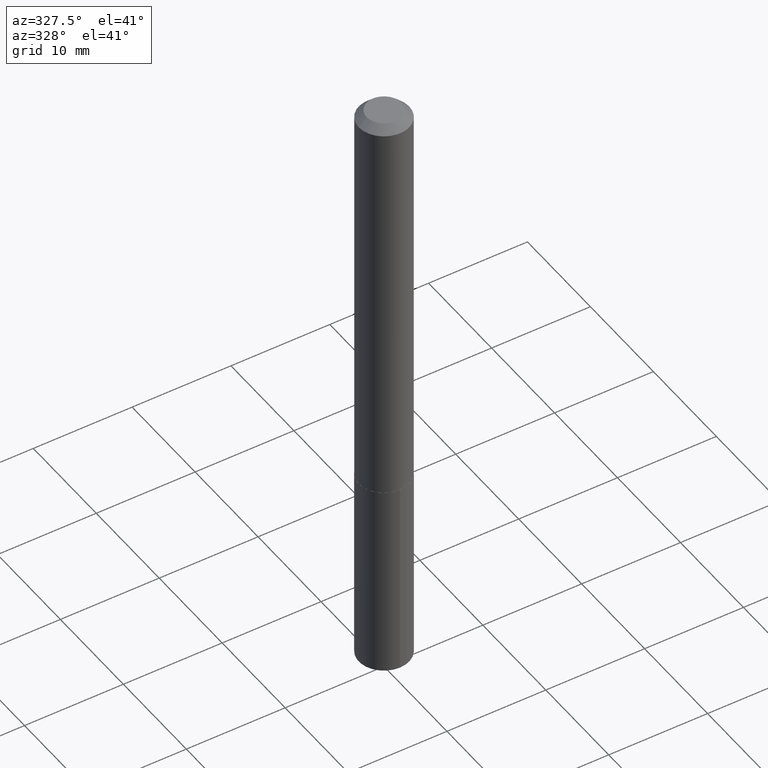
[diagram: clean part render]
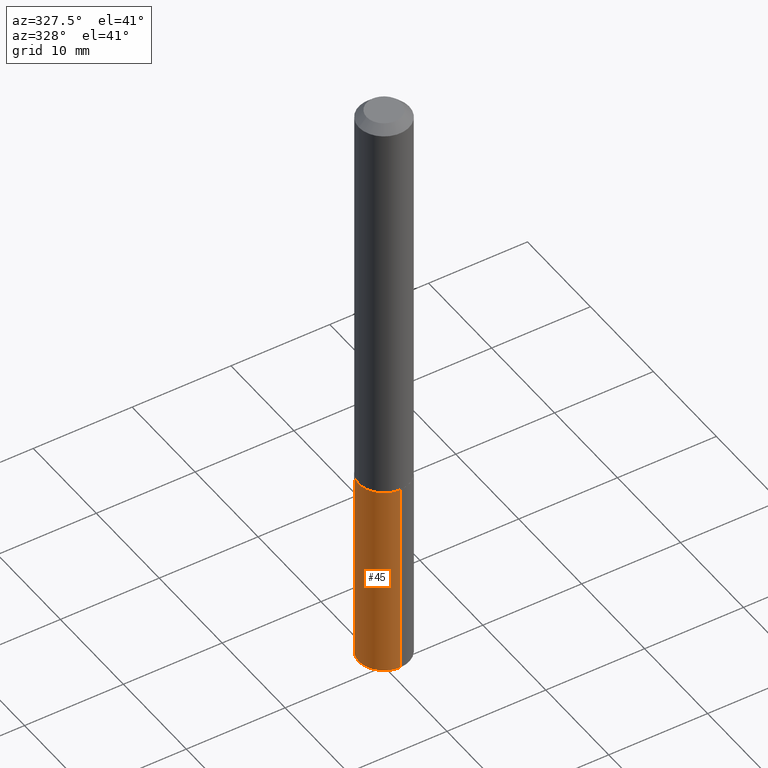
[diagram: same view with one face highlighted and labeled with its STEP entity id]
A machine part, auxiliary view. The second image highlights one B-rep face of the part: STEP entity #45.
In plain terms, the highlighted cylindrical surface (edge-blend (fillet) strip) has radius 2.5502 mm, axis along (-0, 0, 1).
Its self-contained STEP definition (entity closure, byte-faithful):
#16 = CARTESIAN_POINT ( 'NONE',  ( 3.957013075288169897E-29, -5.649565954382093886E-15, -1.618100000000000094 ) ) ;
#28 = CARTESIAN_POINT ( 'NONE',  ( 7.133849067031995762E-16, 0.1003999999999943549, -1.618100000000000316 ) ) ;
#38 = EDGE_CURVE ( 'NONE', #370, #75, #79, .T. ) ;
#41 = VECTOR ( 'NONE', #216, 39.37007874015748143 ) ;
#45 = ADVANCED_FACE ( 'NONE', ( #293 ), #193, .T. ) ;
#46 = CARTESIAN_POINT ( 'NONE',  ( 3.957013075288169897E-29, -5.649565954382093886E-15, -1.618100000000000094 ) ) ;
#49 = ORIENTED_EDGE ( 'NONE', *, *, #38, .T. ) ;
#69 = EDGE_CURVE ( 'NONE', #369, #370, #348, .T. ) ;
#75 = VERTEX_POINT ( 'NONE', #234 ) ;
#79 = LINE ( 'NONE', #298, #168 ) ;
#81 = DIRECTION ( 'NONE',  ( -2.449967317567502477E-29, 3.485039214504230177E-15, 1.000000000000000000 ) ) ;
#97 = ORIENTED_EDGE ( 'NONE', *, *, #166, .F. ) ;
#99 = EDGE_CURVE ( 'NONE', #257, #75, #377, .T. ) ;
#107 = CARTESIAN_POINT ( 'NONE',  ( 5.895290022689288999E-29, -8.406733824265868032E-15, -2.409244001596550167 ) ) ;
#111 = DIRECTION ( 'NONE',  ( -6.982962677686266711E-15, -1.000000000000000000, 2.720964137115799877E-15 ) ) ;
#131 = DIRECTION ( 'NONE',  ( -2.449967317567502477E-29, 3.485039214504230177E-15, 1.000000000000000000 ) ) ;
#133 = DIRECTION ( 'NONE',  ( -2.449967317567502477E-29, 3.485039214504230177E-15, 1.000000000000000000 ) ) ;
#165 = DIRECTION ( 'NONE',  ( -2.449967317567502196E-29, 3.485039214504230177E-15, 1.000000000000000000 ) ) ;
#166 = EDGE_CURVE ( 'NONE', #369, #257, #203, .T. ) ;
#168 = VECTOR ( 'NONE', #165, 39.37007874015748143 ) ;
#179 = ORIENTED_EDGE ( 'NONE', *, *, #99, .F. ) ;
#187 = CARTESIAN_POINT ( 'NONE',  ( 7.133849067031995762E-16, 0.1003999999999916071, -2.409244001596550167 ) ) ;
#193 = CYLINDRICAL_SURFACE ( 'NONE', #387, 0.1004000000000000031 ) ;
#203 = LINE ( 'NONE', #306, #41 ) ;
#216 = DIRECTION ( 'NONE',  ( -2.449967317567502196E-29, 3.485039214504230177E-15, 1.000000000000000000 ) ) ;
#221 = CARTESIAN_POINT ( 'NONE',  ( -7.010894528396421094E-16, -0.1004000000000084131, -2.409244001596549722 ) ) ;
#234 = CARTESIAN_POINT ( 'NONE',  ( -7.010894528396616337E-16, -0.1004000000000056514, -1.618099999999999872 ) ) ;
#248 = ORIENTED_EDGE ( 'NONE', *, *, #69, .T. ) ;
#257 = VERTEX_POINT ( 'NONE', #28 ) ;
#293 = FACE_OUTER_BOUND ( 'NONE', #313, .T. ) ;
#295 = DIRECTION ( 'NONE',  ( -6.982962677686266711E-15, -1.000000000000000000, 2.720964137115799877E-15 ) ) ;
#298 = CARTESIAN_POINT ( 'NONE',  ( -7.010894528396616337E-16, -0.1004000000000056514, -1.618099999999999872 ) ) ;
#306 = CARTESIAN_POINT ( 'NONE',  ( 7.133849067031800519E-16, 0.1003999999999943549, -1.618100000000000316 ) ) ;
#313 = EDGE_LOOP ( 'NONE', ( #97, #248, #49, #179 ) ) ;
#321 = DIRECTION ( 'NONE',  ( -6.982962677686266711E-15, -1.000000000000000000, 2.720964137115799877E-15 ) ) ;
#348 = CIRCLE ( 'NONE', #356, 0.1004000000000000031 ) ;
#356 = AXIS2_PLACEMENT_3D ( 'NONE', #107, #81, #111 ) ;
#369 = VERTEX_POINT ( 'NONE', #187 ) ;
#370 = VERTEX_POINT ( 'NONE', #221 ) ;
#377 = CIRCLE ( 'NONE', #381, 0.1004000000000000031 ) ;
#381 = AXIS2_PLACEMENT_3D ( 'NONE', #46, #133, #295 ) ;
#387 = AXIS2_PLACEMENT_3D ( 'NONE', #16, #131, #321 ) ;